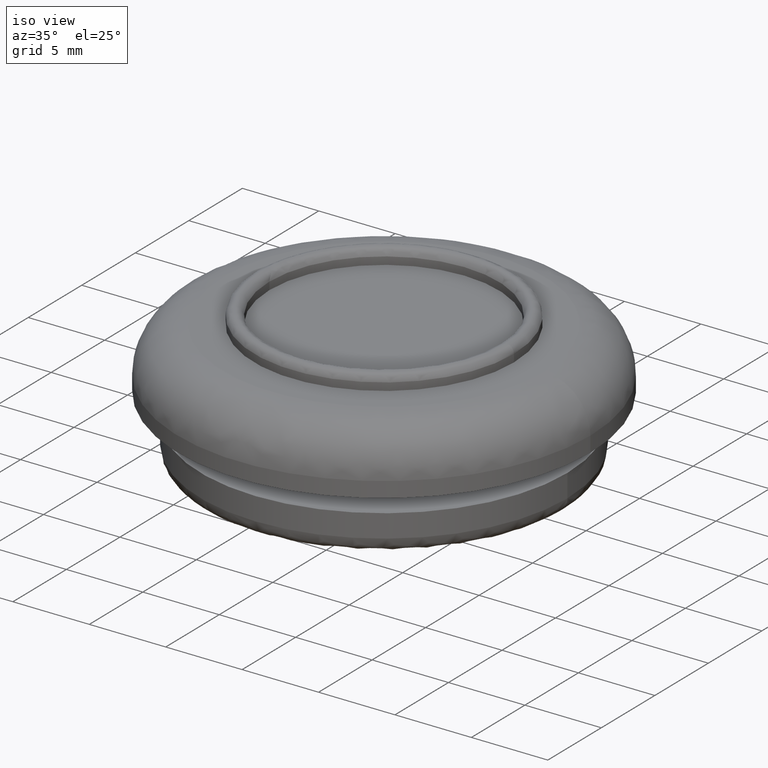
[diagram: clean part render]
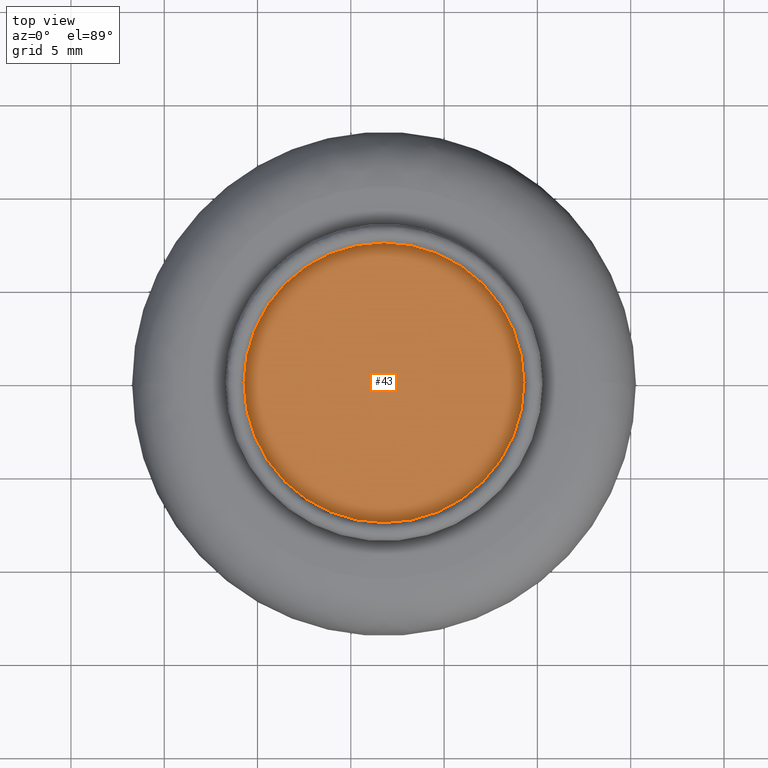
[diagram: tour spotlight — one face highlighted and labeled with its STEP entity id]
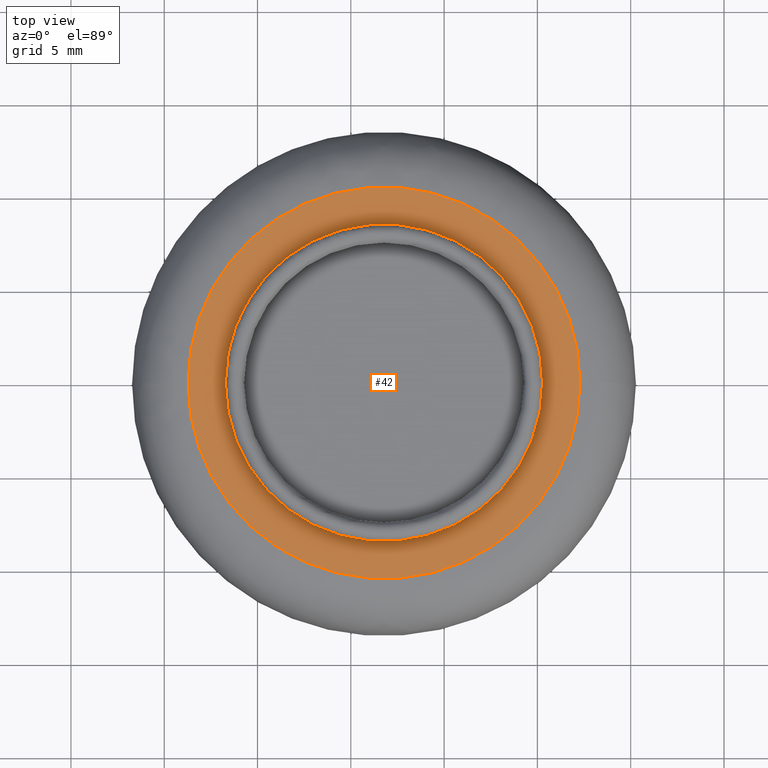
[diagram: tour spotlight — one face highlighted and labeled with its STEP entity id]
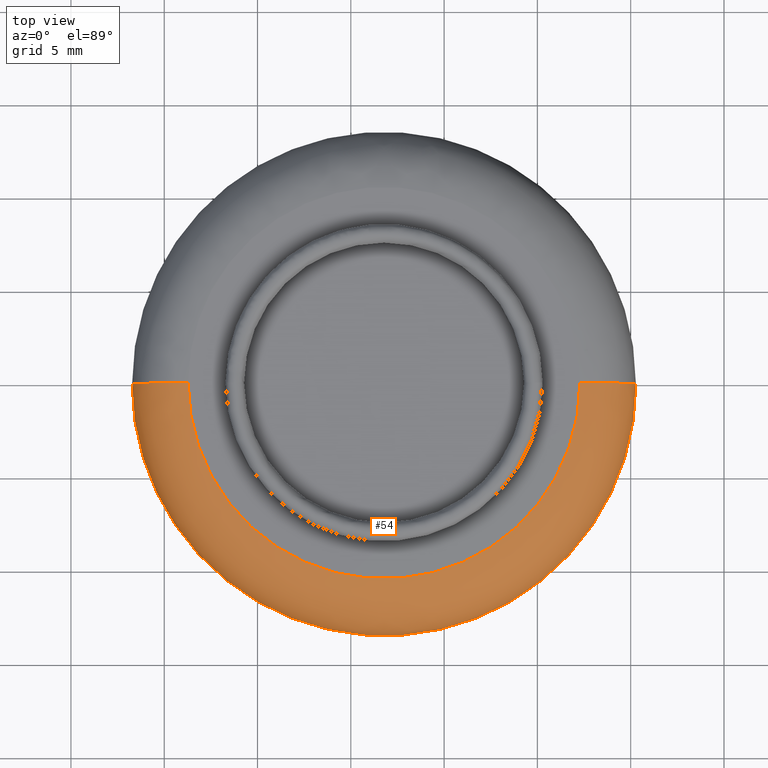
[diagram: tour spotlight — one face highlighted and labeled with its STEP entity id]
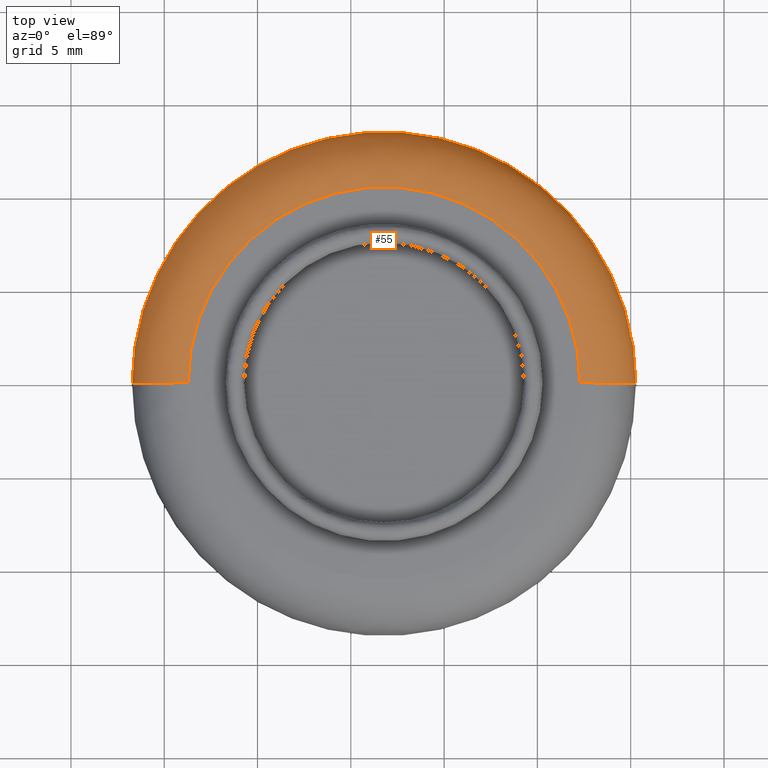
[diagram: tour spotlight — one face highlighted and labeled with its STEP entity id]
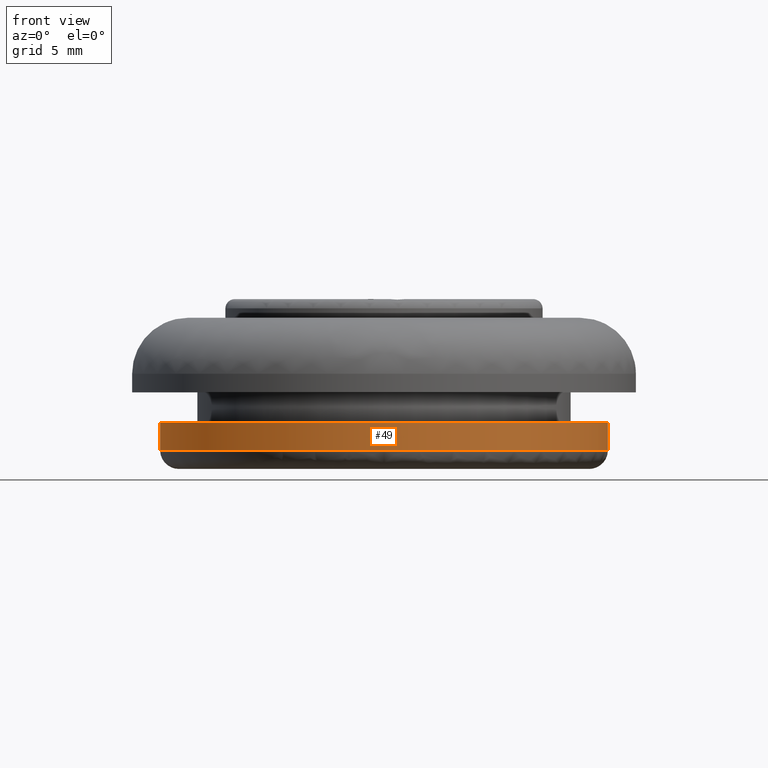
[diagram: tour spotlight — one face highlighted and labeled with its STEP entity id]
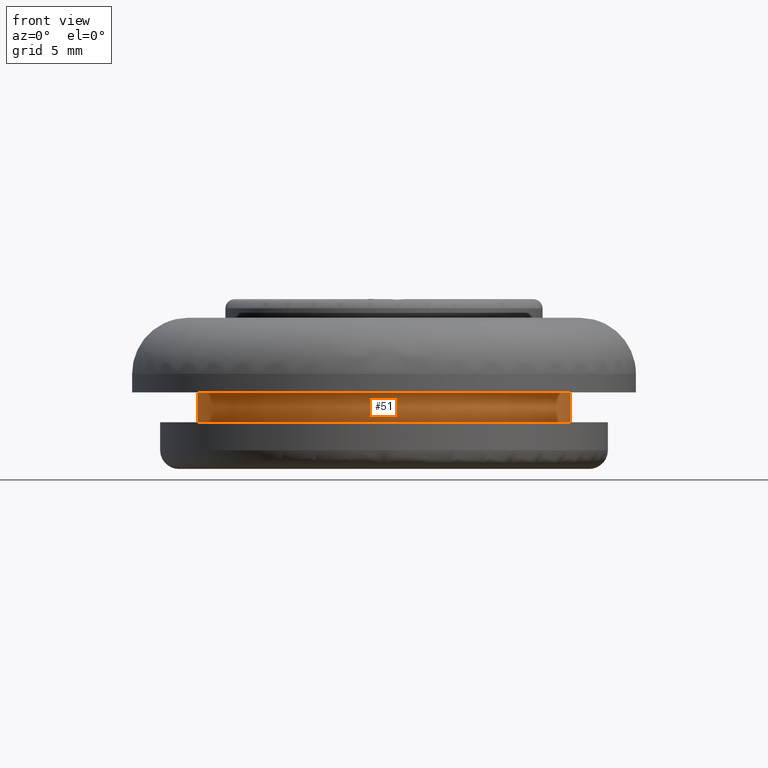
[diagram: tour spotlight — one face highlighted and labeled with its STEP entity id]
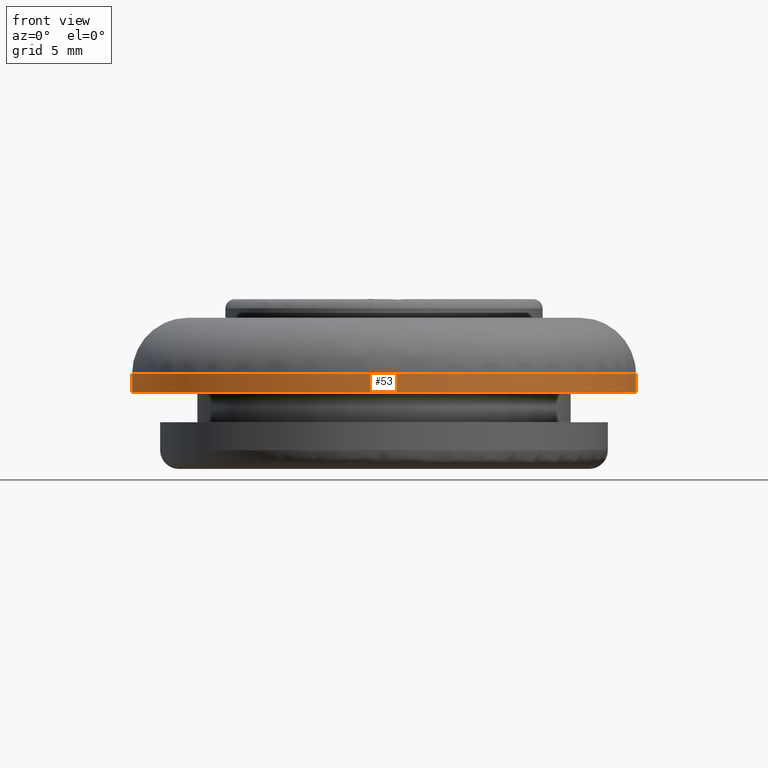
[diagram: tour spotlight — one face highlighted and labeled with its STEP entity id]
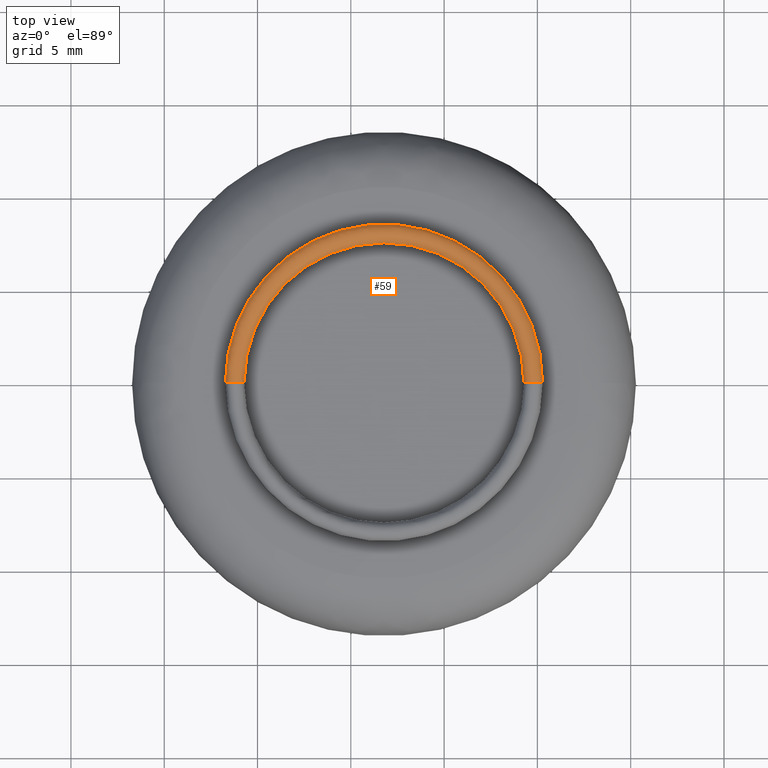
[diagram: tour spotlight — one face highlighted and labeled with its STEP entity id]
A machine part: a face-by-face anatomy tour. The part has 24 B-rep faces; the first image is the clean iso view, then the 8 largest visible faces are spotlighted one at a time (largest first), each with its STEP entity span.

Face 1 — top view, entity #43. In plain terms, the highlighted planar face has unit normal (-0, 0, -1).
Definition (entity closure, byte-faithful):
#43=ADVANCED_FACE('',(#98),#97,.F.);
#97=PLANE('',#329);
#98=FACE_OUTER_BOUND('',#330,.T.);
#326=CARTESIAN_POINT('',(2.94028069758E+002,-1.55884572681E+001,2.71737988893E+002));
#327=DIRECTION('',(-0.00000000000E+000,0.00000000000E+000,-1.00000000000E+000));
#328=DIRECTION('',(-1.00000000000E+000,0.00000000000E+000,0.00000000000E+000));
#329=AXIS2_PLACEMENT_3D('',#326,#327,#328);
#330=EDGE_LOOP('',(#570,#571));
#570=ORIENTED_EDGE('',*,*,#662,.F.);
#571=ORIENTED_EDGE('',*,*,#663,.F.);
#662=EDGE_CURVE('',#780,#781,#782,.T.);
#663=EDGE_CURVE('',#781,#780,#788,.T.);
#780=VERTEX_POINT('',#1060);
#781=VERTEX_POINT('',#1061);
#782=CIRCLE('',#1065,7.50000000000E+000);
#788=CIRCLE('',#1069,7.50000000000E+000);
#1060=CARTESIAN_POINT('',(2.84278069758E+002,5.92118946467E-016,2.71737988893E+002));
#1061=CARTESIAN_POINT('',(2.69278069758E+002,0.00000000000E+000,2.71737988893E+002));
#1062=CARTESIAN_POINT('',(2.76778069758E+002,0.00000000000E+000,2.71737988893E+002));
#1063=DIRECTION('',(-0.00000000000E+000,0.00000000000E+000,-1.00000000000E+000));
#1064=DIRECTION('',(-1.00000000000E+000,-1.22460635382E-016,0.00000000000E+000));
#1065=AXIS2_PLACEMENT_3D('',#1062,#1063,#1064);
#1066=CARTESIAN_POINT('',(2.76778069758E+002,0.00000000000E+000,2.71737988893E+002));
#1067=DIRECTION('',(-0.00000000000E+000,0.00000000000E+000,-1.00000000000E+000));
#1068=DIRECTION('',(-1.00000000000E+000,-1.22460635382E-016,0.00000000000E+000));
#1069=AXIS2_PLACEMENT_3D('',#1066,#1067,#1068);

Face 2 — top view, entity #42. In plain terms, the highlighted planar face has unit normal (-0, 0, -1).
Definition (entity closure, byte-faithful):
#42=ADVANCED_FACE('',(#87,#88),#86,.F.);
#86=PLANE('',#323);
#87=FACE_OUTER_BOUND('',#324,.T.);
#88=FACE_BOUND('',#325,.T.);
#320=CARTESIAN_POINT('',(3.00928069758E+002,-2.18238401754E+001,2.71737988893E+002));
#321=DIRECTION('',(-0.00000000000E+000,0.00000000000E+000,-1.00000000000E+000));
#322=DIRECTION('',(-1.00000000000E+000,0.00000000000E+000,0.00000000000E+000));
#323=AXIS2_PLACEMENT_3D('',#320,#321,#322);
#324=EDGE_LOOP('',(#566,#567));
#325=EDGE_LOOP('',(#568,#569));
#566=ORIENTED_EDGE('',*,*,#658,.F.);
#567=ORIENTED_EDGE('',*,*,#659,.F.);
#568=ORIENTED_EDGE('',*,*,#660,.T.);
#569=ORIENTED_EDGE('',*,*,#661,.T.);
#658=EDGE_CURVE('',#752,#753,#754,.T.);
#659=EDGE_CURVE('',#753,#752,#760,.T.);
#660=EDGE_CURVE('',#766,#767,#768,.T.);
#661=EDGE_CURVE('',#767,#766,#774,.T.);
#752=VERTEX_POINT('',#1040);
#753=VERTEX_POINT('',#1041);
#754=CIRCLE('',#1045,1.05000000000E+001);
#760=CIRCLE('',#1049,1.05000000000E+001);
#766=VERTEX_POINT('',#1050);
#767=VERTEX_POINT('',#1051);
#768=CIRCLE('',#1055,8.50000000000E+000);
#774=CIRCLE('',#1059,8.50000000000E+000);
#1040=CARTESIAN_POINT('',(2.87278069758E+002,5.92118946467E-016,2.71737988893E+002));
#1041=CARTESIAN_POINT('',(2.66278069758E+002,0.00000000000E+000,2.71737988893E+002));
#1042=CARTESIAN_POINT('',(2.76778069758E+002,0.00000000000E+000,2.71737988893E+002));
#1043=DIRECTION('',(-0.00000000000E+000,0.00000000000E+000,-1.00000000000E+000));
#1044=DIRECTION('',(-1.00000000000E+000,-1.22460635382E-016,0.00000000000E+000));
#1045=AXIS2_PLACEMENT_3D('',#1042,#1043,#1044);
#1046=CARTESIAN_POINT('',(2.76778069758E+002,0.00000000000E+000,2.71737988893E+002));
#1047=DIRECTION('',(-0.00000000000E+000,0.00000000000E+000,-1.00000000000E+000));
#1048=DIRECTION('',(-1.00000000000E+000,-1.22460635382E-016,0.00000000000E+000));
#1049=AXIS2_PLACEMENT_3D('',#1046,#1047,#1048);
#1050=CARTESIAN_POINT('',(2.68278069758E+002,0.00000000000E+000,2.71737988893E+002));
#1051=CARTESIAN_POINT('',(2.85278069758E+002,8.88178419700E-016,2.71737988893E+002));
#1052=CARTESIAN_POINT('',(2.76778069758E+002,0.00000000000E+000,2.71737988893E+002));
#1053=DIRECTION('',(-0.00000000000E+000,0.00000000000E+000,-1.00000000000E+000));
#1054=DIRECTION('',(-1.00000000000E+000,-1.22460635382E-016,0.00000000000E+000));
#1055=AXIS2_PLACEMENT_3D('',#1052,#1053,#1054);
#1056=CARTESIAN_POINT('',(2.76778069758E+002,0.00000000000E+000,2.71737988893E+002));
#1057=DIRECTION('',(-0.00000000000E+000,0.00000000000E+000,-1.00000000000E+000));
#1058=DIRECTION('',(-1.00000000000E+000,-1.22460635382E-016,0.00000000000E+000));
#1059=AXIS2_PLACEMENT_3D('',#1056,#1057,#1058);

Face 3 — top view, entity #54. In plain terms, the highlighted face is a freeform B-spline surface patch.
Definition (entity closure, byte-faithful):
#54=ADVANCED_FACE('',(#209),#208,.T.);
#208=( BOUNDED_SURFACE() B_SPLINE_SURFACE( 2,2,((#424,#425,#426,#427,#428),(#429,#430,#431,#432,#433),(#434,#435,#436,#437,#438),(#439,#440,#441,#442,#443),(#444,#445,#446,#447,#448)), .UNSPECIFIED.,.F.,.F.,.F.) B_SPLINE_SURFACE_WITH_KNOTS((3,2,3),(3,2,3),(0.00000000000E+000,5.00000000000E-001,1.00000000000E+000),(0.00000000000E+000,5.00000000000E-001,1.00000000000E+000), .UNSPECIFIED. ) GEOMETRIC_REPRESENTATION_ITEM() RATIONAL_B_SPLINE_SURFACE(((1.00000000000E+000,7.07106781187E-001,1.00000000000E+000,7.07106781187E-001,1.00000000000E+000),(7.07106781187E-001,5.00000000000E-001,7.07106781187E-001,5.00000000000E-001,7.07106781187E-001),(1.00000000000E+000,7.07106781187E-001,1.00000000000E+000,7.07106781187E-001,1.00000000000E+000),(7.07106781187E-001,5.00000000000E-001,7.07106781187E-001,5.00000000000E-001,7.07106781187E-001),(1.00000000000E+000,7.07106781187E-001,1.00000000000E+000,7.07106781187E-001,1.00000000000E+000))) REPRESENTATION_ITEM('') SURFACE() );
#209=FACE_OUTER_BOUND('',#449,.T.);
#424=CARTESIAN_POINT('',(2.84278069758E+002,-9.18454765367E-016,2.68737988893E+002));
#425=CARTESIAN_POINT('',(2.84278069758E+002,-9.18454765367E-016,2.71737988893E+002));
#426=CARTESIAN_POINT('',(2.87278069758E+002,-1.28583667151E-015,2.71737988893E+002));
#427=CARTESIAN_POINT('',(2.90278069758E+002,-1.65321857766E-015,2.71737988893E+002));
#428=CARTESIAN_POINT('',(2.90278069758E+002,-1.65321857766E-015,2.68737988893E+002));
#429=CARTESIAN_POINT('',(2.84278069758E+002,-7.50000000000E+000,2.68737988893E+002));
#430=CARTESIAN_POINT('',(2.84278069758E+002,-7.50000000000E+000,2.71737988893E+002));
#431=CARTESIAN_POINT('',(2.87278069758E+002,-1.05000000000E+001,2.71737988893E+002));
#432=CARTESIAN_POINT('',(2.90278069758E+002,-1.35000000000E+001,2.71737988893E+002));
#433=CARTESIAN_POINT('',(2.90278069758E+002,-1.35000000000E+001,2.68737988893E+002));
#434=CARTESIAN_POINT('',(2.76778069758E+002,-7.50000000000E+000,2.68737988893E+002));
#435=CARTESIAN_POINT('',(2.76778069758E+002,-7.50000000000E+000,2.71737988893E+002));
#436=CARTESIAN_POINT('',(2.76778069758E+002,-1.05000000000E+001,2.71737988893E+002));
#437=CARTESIAN_POINT('',(2.76778069758E+002,-1.35000000000E+001,2.71737988893E+002));
#438=CARTESIAN_POINT('',(2.76778069758E+002,-1.35000000000E+001,2.68737988893E+002));
#439=CARTESIAN_POINT('',(2.69278069758E+002,-7.50000000000E+000,2.68737988893E+002));
#440=CARTESIAN_POINT('',(2.69278069758E+002,-7.50000000000E+000,2.71737988893E+002));
#441=CARTESIAN_POINT('',(2.66278069758E+002,-1.05000000000E+001,2.71737988893E+002));
#442=CARTESIAN_POINT('',(2.63278069758E+002,-1.35000000000E+001,2.71737988893E+002));
#443=CARTESIAN_POINT('',(2.63278069758E+002,-1.35000000000E+001,2.68737988893E+002));
#444=CARTESIAN_POINT('',(2.69278069758E+002,-3.03339937313E-020,2.68737988893E+002));
#445=CARTESIAN_POINT('',(2.69278069758E+002,-3.03339937336E-020,2.71737988893E+002));
#446=CARTESIAN_POINT('',(2.66278069758E+002,-4.24675912235E-020,2.71737988893E+002));
#447=CARTESIAN_POINT('',(2.63278069758E+002,-5.46011887147E-020,2.71737988893E+002));
#448=CARTESIAN_POINT('',(2.63278069758E+002,-5.46011887160E-020,2.68737988893E+002));
#449=EDGE_LOOP('',(#610,#611,#612,#613));
#610=ORIENTED_EDGE('',*,*,#681,.F.);
#611=ORIENTED_EDGE('',*,*,#682,.F.);
#612=ORIENTED_EDGE('',*,*,#658,.T.);
#613=ORIENTED_EDGE('',*,*,#683,.T.);
#658=EDGE_CURVE('',#752,#753,#754,.T.);
#681=EDGE_CURVE('',#887,#886,#906,.T.);
#682=EDGE_CURVE('',#752,#887,#912,.T.);
#683=EDGE_CURVE('',#753,#886,#918,.T.);
#752=VERTEX_POINT('',#1040);
#753=VERTEX_POINT('',#1041);
#754=CIRCLE('',#1045,1.05000000000E+001);
#886=VERTEX_POINT('',#1126);
#887=VERTEX_POINT('',#1127);
#906=CIRCLE('',#1139,1.35000000000E+001);
#912=(BOUNDED_CURVE() B_SPLINE_CURVE(2,(#1140,#1141,#1142),.UNSPECIFIED.,.F.,.F.) B_SPLINE_CURVE_WITH_KNOTS((3,3),(5.00000000000E-001,1.00000000000E+000),.UNSPECIFIED.) CURVE() GEOMETRIC_REPRESENTATION_ITEM() RATIONAL_B_SPLINE_CURVE((1.00000000000E+000,7.07106781187E-001,1.00000000000E+000)) REPRESENTATION_ITEM('') );
#918=(BOUNDED_CURVE() B_SPLINE_CURVE(3,(#1143,#1144,#1145,#1146,#1147),.UNSPECIFIED.,.F.,.F.) B_SPLINE_CURVE_WITH_KNOTS((4,1,4),(4.99999990712E-001,7.49999994651E-001,1.00000000000E+000),.UNSPECIFIED.) CURVE() GEOMETRIC_REPRESENTATION_ITEM() RATIONAL_B_SPLINE_CURVE((1.00000000000E+000,1.00000000000E+000,1.00000000000E+000,1.00000000000E+000,1.00000000000E+000)) REPRESENTATION_ITEM('') );
#1040=CARTESIAN_POINT('',(2.87278069758E+002,5.92118946467E-016,2.71737988893E+002));
#1041=CARTESIAN_POINT('',(2.66278069758E+002,0.00000000000E+000,2.71737988893E+002));
#1042=CARTESIAN_POINT('',(2.76778069758E+002,0.00000000000E+000,2.71737988893E+002));
#1043=DIRECTION('',(-0.00000000000E+000,0.00000000000E+000,-1.00000000000E+000));
#1044=DIRECTION('',(-1.00000000000E+000,-1.22460635382E-016,0.00000000000E+000));
#1045=AXIS2_PLACEMENT_3D('',#1042,#1043,#1044);
#1126=CARTESIAN_POINT('',(2.63278069758E+002,0.00000000000E+000,2.68737988893E+002));
#1127=CARTESIAN_POINT('',(2.90278069758E+002,0.00000000000E+000,2.68737988893E+002));
#1136=CARTESIAN_POINT('',(2.76778069758E+002,0.00000000000E+000,2.68737988893E+002));
#1137=DIRECTION('',(-0.00000000000E+000,0.00000000000E+000,-1.00000000000E+000));
#1138=DIRECTION('',(-1.00000000000E+000,-1.22460635382E-016,0.00000000000E+000));
#1139=AXIS2_PLACEMENT_3D('',#1136,#1137,#1138);
#1140=CARTESIAN_POINT('',(2.87278069758E+002,-1.28583667151E-015,2.71737988893E+002));
#1141=CARTESIAN_POINT('',(2.90278069758E+002,-1.65321857766E-015,2.71737988893E+002));
#1142=CARTESIAN_POINT('',(2.90278069758E+002,-1.65321857766E-015,2.68737988893E+002));
#1143=CARTESIAN_POINT('',(2.66278069837E+002,1.18423788382E-015,2.71737988893E+002));
#1144=CARTESIAN_POINT('',(2.65499718507E+002,1.31127948186E-015,2.71744661091E+002));
#1145=CARTESIAN_POINT('',(2.63927940844E+002,1.59051256796E-015,2.71088117872E+002));
#1146=CARTESIAN_POINT('',(2.63271397580E+002,1.75108982837E-015,2.69516340227E+002));
#1147=CARTESIAN_POINT('',(2.63278069758E+002,1.77635683940E-015,2.68737988893E+002));

Face 4 — top view, entity #55. In plain terms, the highlighted face is a freeform B-spline surface patch.
Definition (entity closure, byte-faithful):
#55=ADVANCED_FACE('',(#219),#218,.T.);
#218=( BOUNDED_SURFACE() B_SPLINE_SURFACE( 2,2,((#450,#451,#452,#453,#454),(#455,#456,#457,#458,#459),(#460,#461,#462,#463,#464),(#465,#466,#467,#468,#469),(#470,#471,#472,#473,#474)), .UNSPECIFIED.,.F.,.F.,.F.) B_SPLINE_SURFACE_WITH_KNOTS((3,2,3),(3,2,3),(0.00000000000E+000,5.00000000000E-001,1.00000000000E+000),(0.00000000000E+000,5.00000000000E-001,1.00000000000E+000), .UNSPECIFIED. ) GEOMETRIC_REPRESENTATION_ITEM() RATIONAL_B_SPLINE_SURFACE(((1.00000000000E+000,7.07106781187E-001,1.00000000000E+000,7.07106781187E-001,1.00000000000E+000),(7.07106781187E-001,5.00000000000E-001,7.07106781187E-001,5.00000000000E-001,7.07106781187E-001),(1.00000000000E+000,7.07106781187E-001,1.00000000000E+000,7.07106781187E-001,1.00000000000E+000),(7.07106781187E-001,5.00000000000E-001,7.07106781187E-001,5.00000000000E-001,7.07106781187E-001),(1.00000000000E+000,7.07106781187E-001,1.00000000000E+000,7.07106781187E-001,1.00000000000E+000))) REPRESENTATION_ITEM('') SURFACE() );
#219=FACE_OUTER_BOUND('',#475,.T.);
#450=CARTESIAN_POINT('',(2.69278069758E+002,-3.03339937320E-020,2.68737988893E+002));
#451=CARTESIAN_POINT('',(2.69278069758E+002,-3.03339937320E-020,2.71737988893E+002));
#452=CARTESIAN_POINT('',(2.66278069758E+002,-4.24675912247E-020,2.71737988893E+002));
#453=CARTESIAN_POINT('',(2.63278069758E+002,-5.46011887175E-020,2.71737988893E+002));
#454=CARTESIAN_POINT('',(2.63278069758E+002,-5.46011887175E-020,2.68737988893E+002));
#455=CARTESIAN_POINT('',(2.69278069758E+002,7.50000000000E+000,2.68737988893E+002));
#456=CARTESIAN_POINT('',(2.69278069758E+002,7.50000000000E+000,2.71737988893E+002));
#457=CARTESIAN_POINT('',(2.66278069758E+002,1.05000000000E+001,2.71737988893E+002));
#458=CARTESIAN_POINT('',(2.63278069758E+002,1.35000000000E+001,2.71737988893E+002));
#459=CARTESIAN_POINT('',(2.63278069758E+002,1.35000000000E+001,2.68737988893E+002));
#460=CARTESIAN_POINT('',(2.76778069758E+002,7.50000000000E+000,2.68737988893E+002));
#461=CARTESIAN_POINT('',(2.76778069758E+002,7.50000000000E+000,2.71737988893E+002));
#462=CARTESIAN_POINT('',(2.76778069758E+002,1.05000000000E+001,2.71737988893E+002));
#463=CARTESIAN_POINT('',(2.76778069758E+002,1.35000000000E+001,2.71737988893E+002));
#464=CARTESIAN_POINT('',(2.76778069758E+002,1.35000000000E+001,2.68737988893E+002));
#465=CARTESIAN_POINT('',(2.84278069758E+002,7.50000000000E+000,2.68737988893E+002));
#466=CARTESIAN_POINT('',(2.84278069758E+002,7.50000000000E+000,2.71737988893E+002));
#467=CARTESIAN_POINT('',(2.87278069758E+002,1.05000000000E+001,2.71737988893E+002));
#468=CARTESIAN_POINT('',(2.90278069758E+002,1.35000000000E+001,2.71737988893E+002));
#469=CARTESIAN_POINT('',(2.90278069758E+002,1.35000000000E+001,2.68737988893E+002));
#470=CARTESIAN_POINT('',(2.84278069758E+002,9.18515433354E-016,2.68737988893E+002));
#471=CARTESIAN_POINT('',(2.84278069758E+002,9.18515433354E-016,2.71737988893E+002));
#472=CARTESIAN_POINT('',(2.87278069758E+002,1.28592160670E-015,2.71737988893E+002));
#473=CARTESIAN_POINT('',(2.90278069758E+002,1.65332778004E-015,2.71737988893E+002));
#474=CARTESIAN_POINT('',(2.90278069758E+002,1.65332778004E-015,2.68737988893E+002));
#475=EDGE_LOOP('',(#614,#615,#616,#617));
#614=ORIENTED_EDGE('',*,*,#659,.T.);
#615=ORIENTED_EDGE('',*,*,#682,.T.);
#616=ORIENTED_EDGE('',*,*,#678,.F.);
#617=ORIENTED_EDGE('',*,*,#683,.F.);
#659=EDGE_CURVE('',#753,#752,#760,.T.);
#678=EDGE_CURVE('',#886,#887,#888,.T.);
#682=EDGE_CURVE('',#752,#887,#912,.T.);
#683=EDGE_CURVE('',#753,#886,#918,.T.);
#752=VERTEX_POINT('',#1040);
#753=VERTEX_POINT('',#1041);
#760=CIRCLE('',#1049,1.05000000000E+001);
#886=VERTEX_POINT('',#1126);
#887=VERTEX_POINT('',#1127);
#888=CIRCLE('',#1131,1.35000000000E+001);
#912=(BOUNDED_CURVE() B_SPLINE_CURVE(2,(#1140,#1141,#1142),.UNSPECIFIED.,.F.,.F.) B_SPLINE_CURVE_WITH_KNOTS((3,3),(5.00000000000E-001,1.00000000000E+000),.UNSPECIFIED.) CURVE() GEOMETRIC_REPRESENTATION_ITEM() RATIONAL_B_SPLINE_CURVE((1.00000000000E+000,7.07106781187E-001,1.00000000000E+000)) REPRESENTATION_ITEM('') );
#918=(BOUNDED_CURVE() B_SPLINE_CURVE(3,(#1143,#1144,#1145,#1146,#1147),.UNSPECIFIED.,.F.,.F.) B_SPLINE_CURVE_WITH_KNOTS((4,1,4),(4.99999990712E-001,7.49999994651E-001,1.00000000000E+000),.UNSPECIFIED.) CURVE() GEOMETRIC_REPRESENTATION_ITEM() RATIONAL_B_SPLINE_CURVE((1.00000000000E+000,1.00000000000E+000,1.00000000000E+000,1.00000000000E+000,1.00000000000E+000)) REPRESENTATION_ITEM('') );
#1040=CARTESIAN_POINT('',(2.87278069758E+002,5.92118946467E-016,2.71737988893E+002));
#1041=CARTESIAN_POINT('',(2.66278069758E+002,0.00000000000E+000,2.71737988893E+002));
#1046=CARTESIAN_POINT('',(2.76778069758E+002,0.00000000000E+000,2.71737988893E+002));
#1047=DIRECTION('',(-0.00000000000E+000,0.00000000000E+000,-1.00000000000E+000));
#1048=DIRECTION('',(-1.00000000000E+000,-1.22460635382E-016,0.00000000000E+000));
#1049=AXIS2_PLACEMENT_3D('',#1046,#1047,#1048);
#1126=CARTESIAN_POINT('',(2.63278069758E+002,0.00000000000E+000,2.68737988893E+002));
#1127=CARTESIAN_POINT('',(2.90278069758E+002,0.00000000000E+000,2.68737988893E+002));
#1128=CARTESIAN_POINT('',(2.76778069758E+002,0.00000000000E+000,2.68737988893E+002));
#1129=DIRECTION('',(-0.00000000000E+000,0.00000000000E+000,-1.00000000000E+000));
#1130=DIRECTION('',(-1.00000000000E+000,-1.22460635382E-016,0.00000000000E+000));
#1131=AXIS2_PLACEMENT_3D('',#1128,#1129,#1130);
#1140=CARTESIAN_POINT('',(2.87278069758E+002,-1.28583667151E-015,2.71737988893E+002));
#1141=CARTESIAN_POINT('',(2.90278069758E+002,-1.65321857766E-015,2.71737988893E+002));
#1142=CARTESIAN_POINT('',(2.90278069758E+002,-1.65321857766E-015,2.68737988893E+002));
#1143=CARTESIAN_POINT('',(2.66278069837E+002,1.18423788382E-015,2.71737988893E+002));
#1144=CARTESIAN_POINT('',(2.65499718507E+002,1.31127948186E-015,2.71744661091E+002));
#1145=CARTESIAN_POINT('',(2.63927940844E+002,1.59051256796E-015,2.71088117872E+002));
#1146=CARTESIAN_POINT('',(2.63271397580E+002,1.75108982837E-015,2.69516340227E+002));
#1147=CARTESIAN_POINT('',(2.63278069758E+002,1.77635683940E-015,2.68737988893E+002));

Face 5 — front view, entity #49. In plain terms, the highlighted cylindrical surface (partial cylindrical patch) has radius 12 mm, axis along (0, -0, 1).
Definition (entity closure, byte-faithful):
#49=ADVANCED_FACE('',(#159),#158,.T.);
#158=CYLINDRICAL_SURFACE('',#402,1.20000000000E+001);
#159=FACE_OUTER_BOUND('',#403,.T.);
#399=CARTESIAN_POINT('',(2.76778069758E+002,0.00000000000E+000,0.00000000000E+000));
#400=DIRECTION('',(0.00000000000E+000,-0.00000000000E+000,1.00000000000E+000));
#401=DIRECTION('',(1.00000000000E+000,0.00000000000E+000,0.00000000000E+000));
#402=AXIS2_PLACEMENT_3D('',#399,#400,#401);
#403=EDGE_LOOP('',(#590,#591,#592,#593));
#590=ORIENTED_EDGE('',*,*,#671,.F.);
#591=ORIENTED_EDGE('',*,*,#674,.T.);
#592=ORIENTED_EDGE('',*,*,#650,.T.);
#593=ORIENTED_EDGE('',*,*,#675,.F.);
#650=EDGE_CURVE('',#696,#697,#698,.T.);
#671=EDGE_CURVE('',#836,#843,#844,.T.);
#674=EDGE_CURVE('',#836,#696,#862,.T.);
#675=EDGE_CURVE('',#843,#697,#868,.T.);
#696=VERTEX_POINT('',#1000);
#697=VERTEX_POINT('',#1001);
#698=CIRCLE('',#1005,1.20000000000E+001);
#836=VERTEX_POINT('',#1100);
#843=VERTEX_POINT('',#1104);
#844=CIRCLE('',#1108,1.20000000000E+001);
#862=(BOUNDED_CURVE() B_SPLINE_CURVE(1,(#1118,#1119),.UNSPECIFIED.,.F.,.F.) B_SPLINE_CURVE_WITH_KNOTS((2,2),(8.33333134656E-002,9.16666653270E-001),.UNSPECIFIED.) CURVE() GEOMETRIC_REPRESENTATION_ITEM() RATIONAL_B_SPLINE_CURVE((1.00000000000E+000,1.00000000000E+000)) REPRESENTATION_ITEM('') );
#868=(BOUNDED_CURVE() B_SPLINE_CURVE(1,(#1120,#1121),.UNSPECIFIED.,.F.,.F.) B_SPLINE_CURVE_WITH_KNOTS((2,2),(8.33333333333E-002,9.16666666667E-001),.UNSPECIFIED.) CURVE() GEOMETRIC_REPRESENTATION_ITEM() RATIONAL_B_SPLINE_CURVE((7.50000000000E-001,7.50000000000E-001)) REPRESENTATION_ITEM('') );
#1000=CARTESIAN_POINT('',(2.88778069758E+002,-5.92118946467E-016,2.66137988893E+002));
#1001=CARTESIAN_POINT('',(2.64778069758E+002,0.00000000000E+000,2.66137988893E+002));
#1002=CARTESIAN_POINT('',(2.76778069758E+002,0.00000000000E+000,2.66137988893E+002));
#1003=DIRECTION('',(-0.00000000000E+000,0.00000000000E+000,-1.00000000000E+000));
#1004=DIRECTION('',(-1.00000000000E+000,-1.22460635382E-016,0.00000000000E+000));
#1005=AXIS2_PLACEMENT_3D('',#1002,#1003,#1004);
#1100=CARTESIAN_POINT('',(2.88778069758E+002,-5.92118946467E-016,2.64637988893E+002));
#1104=CARTESIAN_POINT('',(2.64778069758E+002,0.00000000000E+000,2.64637988893E+002));
#1105=CARTESIAN_POINT('',(2.76778069758E+002,0.00000000000E+000,2.64637988893E+002));
#1106=DIRECTION('',(-0.00000000000E+000,0.00000000000E+000,-1.00000000000E+000));
#1107=DIRECTION('',(-1.00000000000E+000,-1.22460635382E-016,0.00000000000E+000));
#1108=AXIS2_PLACEMENT_3D('',#1105,#1106,#1107);
#1118=CARTESIAN_POINT('',(2.88778069758E+002,0.00000000000E+000,2.64637988857E+002));
#1119=CARTESIAN_POINT('',(2.88778069758E+002,0.00000000000E+000,2.66137988868E+002));
#1120=CARTESIAN_POINT('',(2.64778069758E+002,-5.92118946467E-016,2.64637988893E+002));
#1121=CARTESIAN_POINT('',(2.64778069758E+002,-5.92118946467E-016,2.66137988893E+002));

Face 6 — front view, entity #51. In plain terms, the highlighted cylindrical surface (partial cylindrical patch) has radius 10 mm, axis along (0, -0, 1).
Definition (entity closure, byte-faithful):
#51=ADVANCED_FACE('',(#179),#178,.T.);
#178=CYLINDRICAL_SURFACE('',#412,1.00000000000E+001);
#179=FACE_OUTER_BOUND('',#413,.T.);
#409=CARTESIAN_POINT('',(2.76778069758E+002,0.00000000000E+000,0.00000000000E+000));
#410=DIRECTION('',(0.00000000000E+000,-0.00000000000E+000,1.00000000000E+000));
#411=DIRECTION('',(1.00000000000E+000,-0.00000000000E+000,-0.00000000000E+000));
#412=AXIS2_PLACEMENT_3D('',#409,#410,#411);
#413=EDGE_LOOP('',(#598,#599,#600,#601));
#598=ORIENTED_EDGE('',*,*,#653,.F.);
#599=ORIENTED_EDGE('',*,*,#676,.T.);
#600=ORIENTED_EDGE('',*,*,#656,.T.);
#601=ORIENTED_EDGE('',*,*,#677,.F.);
#653=EDGE_CURVE('',#711,#710,#718,.T.);
#656=EDGE_CURVE('',#738,#739,#740,.T.);
#676=EDGE_CURVE('',#711,#738,#874,.T.);
#677=EDGE_CURVE('',#710,#739,#880,.T.);
#710=VERTEX_POINT('',#1010);
#711=VERTEX_POINT('',#1011);
#718=CIRCLE('',#1019,1.00000000000E+001);
#738=VERTEX_POINT('',#1030);
#739=VERTEX_POINT('',#1031);
#740=CIRCLE('',#1035,1.00000000000E+001);
#874=(BOUNDED_CURVE() B_SPLINE_CURVE(1,(#1122,#1123),.UNSPECIFIED.,.F.,.F.) B_SPLINE_CURVE_WITH_KNOTS((2,2),(8.33333134656E-002,9.16666653270E-001),.UNSPECIFIED.) CURVE() GEOMETRIC_REPRESENTATION_ITEM() RATIONAL_B_SPLINE_CURVE((1.00000000000E+000,1.00000000000E+000)) REPRESENTATION_ITEM('') );
#880=(BOUNDED_CURVE() B_SPLINE_CURVE(1,(#1124,#1125),.UNSPECIFIED.,.F.,.F.) B_SPLINE_CURVE_WITH_KNOTS((2,2),(8.33333333333E-002,9.16666666667E-001),.UNSPECIFIED.) CURVE() GEOMETRIC_REPRESENTATION_ITEM() RATIONAL_B_SPLINE_CURVE((7.50000000000E-001,7.50000000000E-001)) REPRESENTATION_ITEM('') );
#1010=CARTESIAN_POINT('',(2.66778069758E+002,0.00000000000E+000,2.66137988893E+002));
#1011=CARTESIAN_POINT('',(2.86778069758E+002,5.92118946467E-016,2.66137988893E+002));
#1016=CARTESIAN_POINT('',(2.76778069758E+002,0.00000000000E+000,2.66137988893E+002));
#1017=DIRECTION('',(-0.00000000000E+000,0.00000000000E+000,-1.00000000000E+000));
#1018=DIRECTION('',(-1.00000000000E+000,-1.22460635382E-016,0.00000000000E+000));
#1019=AXIS2_PLACEMENT_3D('',#1016,#1017,#1018);
#1030=CARTESIAN_POINT('',(2.86778069758E+002,5.92118946467E-016,2.67737988893E+002));
#1031=CARTESIAN_POINT('',(2.66778069758E+002,0.00000000000E+000,2.67737988893E+002));
#1032=CARTESIAN_POINT('',(2.76778069758E+002,0.00000000000E+000,2.67737988893E+002));
#1033=DIRECTION('',(-0.00000000000E+000,0.00000000000E+000,-1.00000000000E+000));
#1034=DIRECTION('',(-1.00000000000E+000,-1.22460635382E-016,0.00000000000E+000));
#1035=AXIS2_PLACEMENT_3D('',#1032,#1033,#1034);
#1122=CARTESIAN_POINT('',(2.86778069758E+002,0.00000000000E+000,2.66137988854E+002));
#1123=CARTESIAN_POINT('',(2.86778069758E+002,0.00000000000E+000,2.67737988867E+002));
#1124=CARTESIAN_POINT('',(2.66778069758E+002,-5.92118946467E-016,2.66137988893E+002));
#1125=CARTESIAN_POINT('',(2.66778069758E+002,-5.92118946467E-016,2.67737988893E+002));

Face 7 — front view, entity #53. In plain terms, the highlighted cylindrical surface (partial cylindrical patch) has radius 13.5 mm, axis along (0, -0, 1).
Definition (entity closure, byte-faithful):
#53=ADVANCED_FACE('',(#199),#198,.T.);
#198=CYLINDRICAL_SURFACE('',#422,1.35000000000E+001);
#199=FACE_OUTER_BOUND('',#423,.T.);
#419=CARTESIAN_POINT('',(2.76778069758E+002,0.00000000000E+000,0.00000000000E+000));
#420=DIRECTION('',(0.00000000000E+000,-0.00000000000E+000,1.00000000000E+000));
#421=DIRECTION('',(1.00000000000E+000,-0.00000000000E+000,-0.00000000000E+000));
#422=AXIS2_PLACEMENT_3D('',#419,#420,#421);
#423=EDGE_LOOP('',(#606,#607,#608,#609));
#606=ORIENTED_EDGE('',*,*,#655,.F.);
#607=ORIENTED_EDGE('',*,*,#679,.T.);
#608=ORIENTED_EDGE('',*,*,#681,.T.);
#609=ORIENTED_EDGE('',*,*,#680,.F.);
#655=EDGE_CURVE('',#725,#724,#732,.T.);
#679=EDGE_CURVE('',#725,#887,#894,.T.);
#680=EDGE_CURVE('',#724,#886,#900,.T.);
#681=EDGE_CURVE('',#887,#886,#906,.T.);
#724=VERTEX_POINT('',#1020);
#725=VERTEX_POINT('',#1021);
#732=CIRCLE('',#1029,1.35000000000E+001);
#886=VERTEX_POINT('',#1126);
#887=VERTEX_POINT('',#1127);
#894=(BOUNDED_CURVE() B_SPLINE_CURVE(1,(#1132,#1133),.UNSPECIFIED.,.F.,.F.) B_SPLINE_CURVE_WITH_KNOTS((2,2),(8.33332935974E-002,9.16666633252E-001),.UNSPECIFIED.) CURVE() GEOMETRIC_REPRESENTATION_ITEM() RATIONAL_B_SPLINE_CURVE((1.00000000000E+000,1.00000000000E+000)) REPRESENTATION_ITEM('') );
#900=(BOUNDED_CURVE() B_SPLINE_CURVE(1,(#1134,#1135),.UNSPECIFIED.,.F.,.F.) B_SPLINE_CURVE_WITH_KNOTS((2,2),(8.33333333333E-002,9.16666666667E-001),.UNSPECIFIED.) CURVE() GEOMETRIC_REPRESENTATION_ITEM() RATIONAL_B_SPLINE_CURVE((7.50000000000E-001,7.50000000000E-001)) REPRESENTATION_ITEM('') );
#906=CIRCLE('',#1139,1.35000000000E+001);
#1020=CARTESIAN_POINT('',(2.63278069758E+002,0.00000000000E+000,2.67737988893E+002));
#1021=CARTESIAN_POINT('',(2.90278069758E+002,0.00000000000E+000,2.67737988893E+002));
#1026=CARTESIAN_POINT('',(2.76778069758E+002,0.00000000000E+000,2.67737988893E+002));
#1027=DIRECTION('',(-0.00000000000E+000,0.00000000000E+000,-1.00000000000E+000));
#1028=DIRECTION('',(-1.00000000000E+000,-1.22460635382E-016,0.00000000000E+000));
#1029=AXIS2_PLACEMENT_3D('',#1026,#1027,#1028);
#1126=CARTESIAN_POINT('',(2.63278069758E+002,0.00000000000E+000,2.68737988893E+002));
#1127=CARTESIAN_POINT('',(2.90278069758E+002,0.00000000000E+000,2.68737988893E+002));
#1132=CARTESIAN_POINT('',(2.90278069758E+002,0.00000000000E+000,2.67737988845E+002));
#1133=CARTESIAN_POINT('',(2.90278069758E+002,0.00000000000E+000,2.68737988852E+002));
#1134=CARTESIAN_POINT('',(2.63278069758E+002,-5.92118946467E-016,2.67737988893E+002));
#1135=CARTESIAN_POINT('',(2.63278069758E+002,-5.92118946467E-016,2.68737988893E+002));
#1136=CARTESIAN_POINT('',(2.76778069758E+002,0.00000000000E+000,2.68737988893E+002));
#1137=DIRECTION('',(-0.00000000000E+000,0.00000000000E+000,-1.00000000000E+000));
#1138=DIRECTION('',(-1.00000000000E+000,-1.22460635382E-016,0.00000000000E+000));
#1139=AXIS2_PLACEMENT_3D('',#1136,#1137,#1138);

Face 8 — top view, entity #59. In plain terms, the highlighted face is a freeform B-spline surface patch.
Definition (entity closure, byte-faithful):
#59=ADVANCED_FACE('',(#259),#258,.T.);
#258=( BOUNDED_SURFACE() B_SPLINE_SURFACE( 2,2,((#512,#513,#514,#515,#516),(#517,#518,#519,#520,#521),(#522,#523,#524,#525,#526),(#527,#528,#529,#530,#531),(#532,#533,#534,#535,#536)), .UNSPECIFIED.,.F.,.F.,.F.) B_SPLINE_SURFACE_WITH_KNOTS((3,2,3),(3,2,3),(0.00000000000E+000,5.00000000000E-001,1.00000000000E+000),(0.00000000000E+000,5.00000000000E-001,1.00000000000E+000), .UNSPECIFIED. ) GEOMETRIC_REPRESENTATION_ITEM() RATIONAL_B_SPLINE_SURFACE(((1.00000000000E+000,7.07106781187E-001,1.00000000000E+000,7.07106781187E-001,1.00000000000E+000),(7.07106781187E-001,5.00000000000E-001,7.07106781187E-001,5.00000000000E-001,7.07106781187E-001),(1.00000000000E+000,7.07106781187E-001,1.00000000000E+000,7.07106781187E-001,1.00000000000E+000),(7.07106781187E-001,5.00000000000E-001,7.07106781187E-001,5.00000000000E-001,7.07106781187E-001),(1.00000000000E+000,7.07106781187E-001,1.00000000000E+000,7.07106781187E-001,1.00000000000E+000))) REPRESENTATION_ITEM('') SURFACE() );
#259=FACE_OUTER_BOUND('',#537,.T.);
#512=CARTESIAN_POINT('',(2.69278069758E+002,-3.03339937320E-020,2.72237988893E+002));
#513=CARTESIAN_POINT('',(2.69278069758E+002,-3.03339937320E-020,2.72737988893E+002));
#514=CARTESIAN_POINT('',(2.68778069758E+002,-3.23562599808E-020,2.72737988893E+002));
#515=CARTESIAN_POINT('',(2.68278069758E+002,-3.43785262296E-020,2.72737988893E+002));
#516=CARTESIAN_POINT('',(2.68278069758E+002,-3.43785262296E-020,2.72237988893E+002));
#517=CARTESIAN_POINT('',(2.69278069758E+002,7.50000000000E+000,2.72237988893E+002));
#518=CARTESIAN_POINT('',(2.69278069758E+002,7.50000000000E+000,2.72737988893E+002));
#519=CARTESIAN_POINT('',(2.68778069758E+002,8.00000000000E+000,2.72737988893E+002));
#520=CARTESIAN_POINT('',(2.68278069758E+002,8.50000000000E+000,2.72737988893E+002));
#521=CARTESIAN_POINT('',(2.68278069758E+002,8.50000000000E+000,2.72237988893E+002));
#522=CARTESIAN_POINT('',(2.76778069758E+002,7.50000000000E+000,2.72237988893E+002));
#523=CARTESIAN_POINT('',(2.76778069758E+002,7.50000000000E+000,2.72737988893E+002));
#524=CARTESIAN_POINT('',(2.76778069758E+002,8.00000000000E+000,2.72737988893E+002));
#525=CARTESIAN_POINT('',(2.76778069758E+002,8.50000000000E+000,2.72737988893E+002));
#526=CARTESIAN_POINT('',(2.76778069758E+002,8.50000000000E+000,2.72237988893E+002));
#527=CARTESIAN_POINT('',(2.84278069758E+002,7.50000000000E+000,2.72237988893E+002));
#528=CARTESIAN_POINT('',(2.84278069758E+002,7.50000000000E+000,2.72737988893E+002));
#529=CARTESIAN_POINT('',(2.84778069758E+002,8.00000000000E+000,2.72737988893E+002));
#530=CARTESIAN_POINT('',(2.85278069758E+002,8.50000000000E+000,2.72737988893E+002));
#531=CARTESIAN_POINT('',(2.85278069758E+002,8.50000000000E+000,2.72237988893E+002));
#532=CARTESIAN_POINT('',(2.84278069758E+002,9.18515433354E-016,2.72237988893E+002));
#533=CARTESIAN_POINT('',(2.84278069758E+002,9.18515433354E-016,2.72737988893E+002));
#534=CARTESIAN_POINT('',(2.84778069758E+002,9.79749795578E-016,2.72737988893E+002));
#535=CARTESIAN_POINT('',(2.85278069758E+002,1.04098415780E-015,2.72737988893E+002));
#536=CARTESIAN_POINT('',(2.85278069758E+002,1.04098415780E-015,2.72237988893E+002));
#537=EDGE_LOOP('',(#630,#631,#632,#633));
#630=ORIENTED_EDGE('',*,*,#691,.T.);
#631=ORIENTED_EDGE('',*,*,#688,.T.);
#632=ORIENTED_EDGE('',*,*,#684,.F.);
#633=ORIENTED_EDGE('',*,*,#690,.F.);
#684=EDGE_CURVE('',#924,#925,#926,.T.);
#688=EDGE_CURVE('',#950,#925,#951,.T.);
#690=EDGE_CURVE('',#957,#924,#964,.T.);
#691=EDGE_CURVE('',#957,#950,#970,.T.);
#924=VERTEX_POINT('',#1148);
#925=VERTEX_POINT('',#1149);
#926=CIRCLE('',#1153,8.50000000000E+000);
#950=VERTEX_POINT('',#1162);
#951=(BOUNDED_CURVE() B_SPLINE_CURVE(2,(#1163,#1164,#1165,#1166,#1167),.UNSPECIFIED.,.F.,.F.) B_SPLINE_CURVE_WITH_KNOTS((3,2,3),(0.00000000000E+000,5.00000000000E-001,1.00000000000E+000),.UNSPECIFIED.) CURVE() GEOMETRIC_REPRESENTATION_ITEM() RATIONAL_B_SPLINE_CURVE((1.00000000000E+000,7.07106781187E-001,1.00000000000E+000,7.07106781187E-001,1.00000000000E+000)) REPRESENTATION_ITEM('') );
#957=VERTEX_POINT('',#1168);
#964=(BOUNDED_CURVE() B_SPLINE_CURVE(2,(#1173,#1174,#1175,#1176,#1177),.UNSPECIFIED.,.F.,.F.) B_SPLINE_CURVE_WITH_KNOTS((3,2,3),(0.00000000000E+000,5.00000000000E-001,1.00000000000E+000),.UNSPECIFIED.) CURVE() GEOMETRIC_REPRESENTATION_ITEM() RATIONAL_B_SPLINE_CURVE((7.50000000000E-001,5.30330085890E-001,7.50000000000E-001,5.30330085890E-001,7.50000000000E-001)) REPRESENTATION_ITEM('') );
#970=CIRCLE('',#1181,7.50000000000E+000);
#1148=CARTESIAN_POINT('',(2.68278069758E+002,0.00000000000E+000,2.72237988893E+002));
#1149=CARTESIAN_POINT('',(2.85278069758E+002,8.88178419700E-016,2.72237988893E+002));
#1150=CARTESIAN_POINT('',(2.76778069758E+002,0.00000000000E+000,2.72237988893E+002));
#1151=DIRECTION('',(-0.00000000000E+000,0.00000000000E+000,-1.00000000000E+000));
#1152=DIRECTION('',(-1.00000000000E+000,-1.22460635382E-016,0.00000000000E+000));
#1153=AXIS2_PLACEMENT_3D('',#1150,#1151,#1152);
#1162=CARTESIAN_POINT('',(2.84278069758E+002,5.92118946467E-016,2.72237988893E+002));
#1163=CARTESIAN_POINT('',(2.84278069758E+002,-9.18454765367E-016,2.72237988893E+002));
#1164=CARTESIAN_POINT('',(2.84278069758E+002,-9.18454765367E-016,2.72737988893E+002));
#1165=CARTESIAN_POINT('',(2.84778069758E+002,-9.79685083058E-016,2.72737988893E+002));
#1166=CARTESIAN_POINT('',(2.85278069758E+002,-1.04091540075E-015,2.72737988893E+002));
#1167=CARTESIAN_POINT('',(2.85278069758E+002,-1.04091540075E-015,2.72237988893E+002));
#1168=CARTESIAN_POINT('',(2.69278069758E+002,0.00000000000E+000,2.72237988893E+002));
#1173=CARTESIAN_POINT('',(2.69278069758E+002,1.48029736617E-015,2.72237988893E+002));
#1174=CARTESIAN_POINT('',(2.69278069758E+002,8.37382644631E-016,2.72737988893E+002));
#1175=CARTESIAN_POINT('',(2.68778069758E+002,1.48029736617E-015,2.72737988893E+002));
#1176=CARTESIAN_POINT('',(2.68278069758E+002,1.25607396695E-015,2.72737988893E+002));
#1177=CARTESIAN_POINT('',(2.68278069758E+002,1.48029736617E-015,2.72237988893E+002));
#1178=CARTESIAN_POINT('',(2.76778069758E+002,0.00000000000E+000,2.72237988893E+002));
#1179=DIRECTION('',(-0.00000000000E+000,0.00000000000E+000,-1.00000000000E+000));
#1180=DIRECTION('',(-1.00000000000E+000,-1.22460635382E-016,0.00000000000E+000));
#1181=AXIS2_PLACEMENT_3D('',#1178,#1179,#1180);